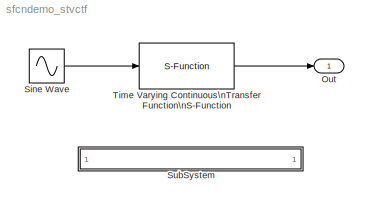
MODEL sfcndemo_stvctf
KIND model
BLOCK [Outport] Out
  IconDisplay = Port number
  InitialOutput = 0
BLOCK [Sin] Sine Wave
  Amplitude = [1 2 3 4 5 4 3 2 1]
  Ports = [0, 1]
  SampleTime = 0
BLOCK [SubSystem] SubSystem
  MaskDisplay = disp('matlabroot<path>');
  MaskIconFrame = on
  MaskIconOpaque = on
  MaskIconRotate = none
  MaskIconUnits = autoscale
  MinAlgLoopOccurrences = off
  OpenFcn = edit(fullfile(matlabroot,'simulink','src','stvctf.c'))
  Ports = []
  PropExecContextAcrossSSBoundary = on
  RTWSystemCode = Auto
  TreatAsAtomicUnit = off
BLOCK [S-Function] Time Varying Continuous\nTransfer Function\nS-Function
  FunctionName = stvctf
  MaskCallbackString = ||
  MaskDescription = This is a S-function block which does time varying continuous transfer function.
  MaskEnableString = on,on,on
  MaskIconFrame = on
  MaskIconOpaque = on
  MaskIconRotate = none
  MaskIconUnits = autoscale
  MaskPromptString = Numerator:|Denominator:|Sample time:
  MaskStyleString = edit,edit,edit
  MaskTabNameString = ,,
  MaskToolTipString = on,on,on
  MaskTunableValueString = on,on,on
  MaskType = S-function: stvctf
  MaskValueString = [0 0 0 1.1909]|[1.0 1.6154 1.1551 0.2360]|1.0
  MaskVarAliasString = ,,
  MaskVariables = num=@1;den=@2;ts=@3;
  MaskVisibilityString = on,on,on
  Parameters = num, den, ts
  Ports = [1, 1]
LINE Sine Wave:1 -> Time Varying Continuous\nTransfer Function\nS-Function:1
LINE Time Varying Continuous\nTransfer Function\nS-Function:1 -> Out:1
note: 1 file-system path scrubbed to <path> (not preserved elsewhere — flat text is the only slx artifact)
